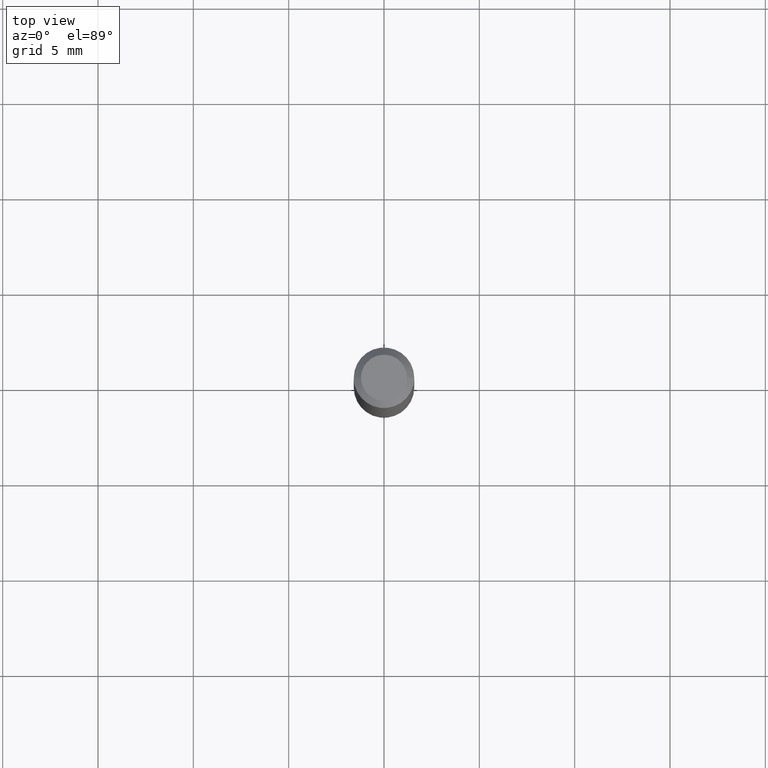
[diagram: clean part render]
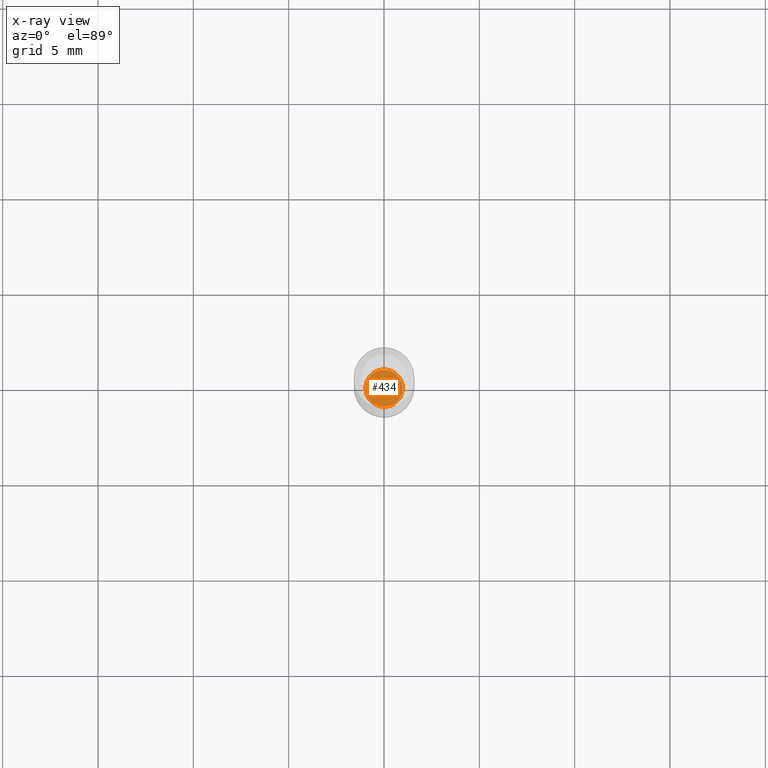
[diagram: x-ray — body ghosted, one internal face saturated and labeled with its STEP entity id]
A machine part, top view, then the same camera in x-ray: the body is ghosted and one INTERNAL B-rep face — a face not visible from any outside direction — is saturated and labeled: STEP entity #434.
In plain terms, the highlighted planar face has unit normal (-0, 0, 1).
Its self-contained STEP definition (entity closure, byte-faithful):
#7 = ORIENTED_EDGE ( 'NONE', *, *, #280, .F. ) ;
#18 = DIRECTION ( 'NONE',  ( -2.445468806185136597E-29, 3.491481338843145583E-15, 1.000000000000000000 ) ) ;
#39 = CARTESIAN_POINT ( 'NONE',  ( 3.095963508630383106E-29, -4.420215374975422163E-15, -1.266000000000000014 ) ) ;
#43 = CIRCLE ( 'NONE', #291, 0.03849999999999999256 ) ;
#55 = FACE_OUTER_BOUND ( 'NONE', #402, .T. ) ;
#67 = CIRCLE ( 'NONE', #262, 0.03849999999999999256 ) ;
#119 = DIRECTION ( 'NONE',  ( -2.445468806185136597E-29, 3.491481338843145583E-15, 1.000000000000000000 ) ) ;
#166 = CARTESIAN_POINT ( 'NONE',  ( -0.03849999999999999256, -4.144007194533673331E-15, -1.266000000000000014 ) ) ;
#188 = DIRECTION ( 'NONE',  ( 1.000000000000000000, -6.982962677686271444E-15, 0.000000000000000000 ) ) ;
#203 = CARTESIAN_POINT ( 'NONE',  ( 3.095963508630383106E-29, -4.420215374975422163E-15, -1.266000000000000014 ) ) ;
#262 = AXIS2_PLACEMENT_3D ( 'NONE', #375, #119, #454 ) ;
#280 = EDGE_CURVE ( 'NONE', #407, #448, #67, .T. ) ;
#285 = DIRECTION ( 'NONE',  ( 1.000000000000000000, -6.982962677686265922E-15, 4.876176775795935793E-29 ) ) ;
#291 = AXIS2_PLACEMENT_3D ( 'NONE', #39, #18, #188 ) ;
#303 = CARTESIAN_POINT ( 'NONE',  ( 0.03849999999999999256, -4.689059438066343968E-15, -1.266000000000000014 ) ) ;
#374 = ORIENTED_EDGE ( 'NONE', *, *, #378, .F. ) ;
#375 = CARTESIAN_POINT ( 'NONE',  ( 3.095963508630383106E-29, -4.420215374975422163E-15, -1.266000000000000014 ) ) ;
#378 = EDGE_CURVE ( 'NONE', #448, #407, #43, .T. ) ;
#395 = DIRECTION ( 'NONE',  ( -2.438088387897960049E-29, 3.491481338843145188E-15, 1.000000000000000000 ) ) ;
#402 = EDGE_LOOP ( 'NONE', ( #7, #374 ) ) ;
#407 = VERTEX_POINT ( 'NONE', #303 ) ;
#420 = PLANE ( 'NONE',  #451 ) ;
#434 = ADVANCED_FACE ( 'NONE', ( #55 ), #420, .F. ) ;
#448 = VERTEX_POINT ( 'NONE', #166 ) ;
#451 = AXIS2_PLACEMENT_3D ( 'NONE', #203, #395, #285 ) ;
#454 = DIRECTION ( 'NONE',  ( 1.000000000000000000, -6.982962677686271444E-15, 0.000000000000000000 ) ) ;